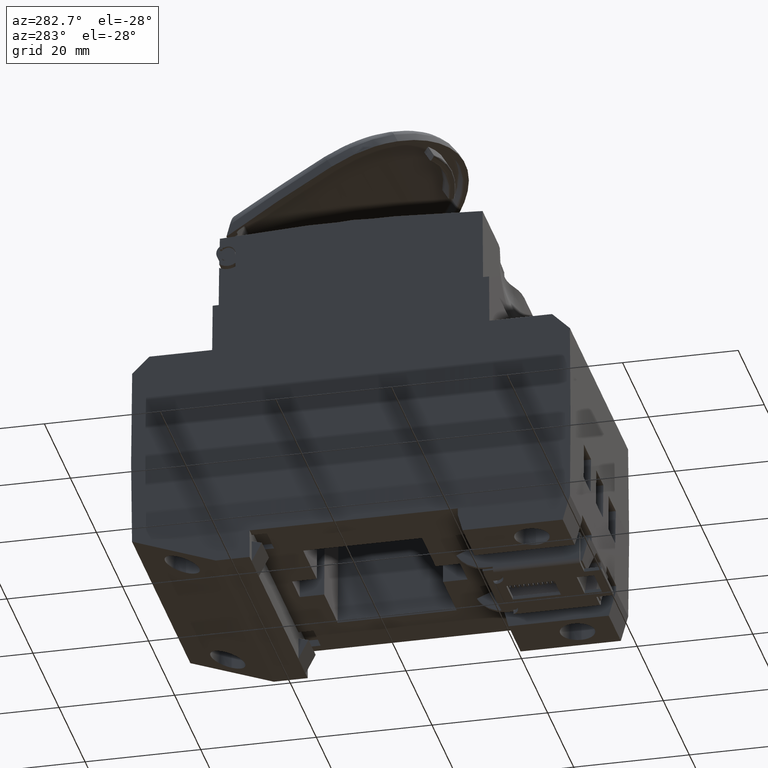
[diagram: clean part render]
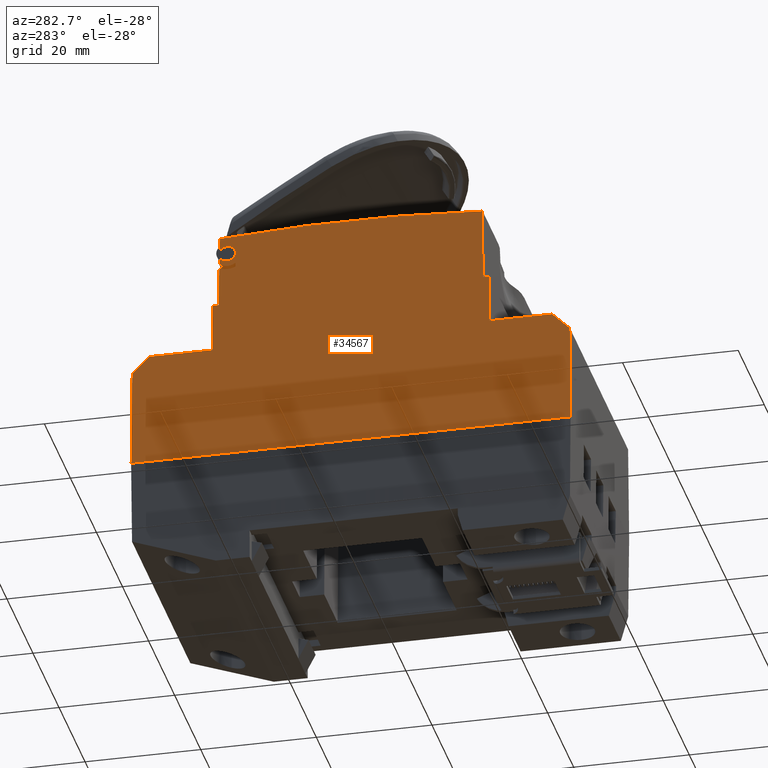
[diagram: same view with one face highlighted and labeled with its STEP entity id]
A machine part, auxiliary view. The second image highlights one B-rep face of the part: STEP entity #34567.
In plain terms, the highlighted planar face has unit normal (-1, -0, 0.0087).
Its self-contained STEP definition (entity closure, byte-faithful):
#369 = CARTESIAN_POINT ( 'NONE',  ( -22.17458333359016400, 21.97597551166610000, 11.86202160087930000 ) ) ;
#370 = CARTESIAN_POINT ( 'NONE',  ( -22.15316306614790800, 21.97597551166610000, 14.31654113249560500 ) ) ;
#374 = CARTESIAN_POINT ( 'NONE',  ( -22.15466507836840600, 22.26753146497856100, 14.14442757967132300 ) ) ;
#393 = CARTESIAN_POINT ( 'NONE',  ( -22.18676355948808200, 19.97804671303299900, 10.46630595696663900 ) ) ;
#556 = VECTOR ( 'NONE', #47746, 1000.000000000000100 ) ;
#918 = VECTOR ( 'NONE', #60528, 1000.000000000000100 ) ;
#933 = VECTOR ( 'NONE', #60536, 1000.000000000000000 ) ;
#1380 = CARTESIAN_POINT ( 'NONE',  ( -22.49780052446459400, 23.97500475979786600, -25.19999999999999200 ) ) ;
#1382 = CARTESIAN_POINT ( 'NONE',  ( -22.49801869615937400, -7.991668253266463600, -25.19999999999999200 ) ) ;
#1396 = CARTESIAN_POINT ( 'NONE',  ( -22.49801869615939900, 7.991668253265697100, -25.19999999999999200 ) ) ;
#1411 = CARTESIAN_POINT ( 'NONE',  ( -22.49780052446455900, -23.97500475979861900, -25.19999999999999200 ) ) ;
#2905 = AXIS2_PLACEMENT_3D ( 'NONE', #13147, #13106, #13131 ) ;
#4307 = CARTESIAN_POINT ( 'NONE',  ( -22.17565447138656500, 21.32804671303300000, 11.73928136668744500 ) ) ;
#4323 = CARTESIAN_POINT ( 'NONE',  ( -22.17565043428683700, 21.52125764029313600, 11.73974397249633100 ) ) ;
#4332 = CARTESIAN_POINT ( 'NONE',  ( -22.17461536598796500, 21.88240269932254700, 11.85835105165536300 ) ) ;
#4352 = CARTESIAN_POINT ( 'NONE',  ( -22.17530406582063700, 21.70604296905632000, 11.77943386748563100 ) ) ;
#7364 = CARTESIAN_POINT ( 'NONE',  ( -22.15584761742177000, 20.33059559037909000, 14.00892202582260100 ) ) ;
#7366 = CARTESIAN_POINT ( 'NONE',  ( -22.16485346944145400, 19.97800233832086300, 12.97695359962178000 ) ) ;
#7367 = CARTESIAN_POINT ( 'NONE',  ( -22.16787411623834500, 20.05574582416449300, 12.63082176064905900 ) ) ;
#7368 = CARTESIAN_POINT ( 'NONE',  ( -22.16898124393439300, 20.11141320759353900, 12.50395749243796800 ) ) ;
#7369 = CARTESIAN_POINT ( 'NONE',  ( -22.17232649514465900, 20.38510573159142000, 12.12062967191026500 ) ) ;
#7370 = CARTESIAN_POINT ( 'NONE',  ( -22.15794834969837300, 20.16109464474995100, 13.76820194996279800 ) ) ;
#7371 = CARTESIAN_POINT ( 'NONE',  ( -22.16865187409546000, 20.09340795923226300, 12.54169953767486200 ) ) ;
#7372 = CARTESIAN_POINT ( 'NONE',  ( -22.16919994494769200, 20.12383100279710400, 12.47889683854240100 ) ) ;
#7373 = CARTESIAN_POINT ( 'NONE',  ( -22.17124797044054300, 20.26667442405207000, 12.24421636188650300 ) ) ;
#7374 = CARTESIAN_POINT ( 'NONE',  ( -22.15252462940536700, 20.96547117423330100, 14.38969873701710300 ) ) ;
#7375 = CARTESIAN_POINT ( 'NONE',  ( -22.17372579713714500, 20.58332341325227000, 11.96028554546862000 ) ) ;
#7377 = CARTESIAN_POINT ( 'NONE',  ( -22.15423805896775600, 20.55111157472950400, 14.19335915637111600 ) ) ;
#7378 = CARTESIAN_POINT ( 'NONE',  ( -22.15703394413382900, 20.22657601810139000, 13.87298244927409900 ) ) ;
#7379 = CARTESIAN_POINT ( 'NONE',  ( -22.16191266072421600, 19.97813546245728800, 13.31393690081877600 ) ) ;
#7380 = CARTESIAN_POINT ( 'NONE',  ( -22.17018620285252000, 20.18381716974978000, 12.36588287654909900 ) ) ;
#7381 = CARTESIAN_POINT ( 'NONE',  ( -22.17306529935774200, 20.48345118574426800, 12.03597109442251800 ) ) ;
#7383 = CARTESIAN_POINT ( 'NONE',  ( -22.15215161141331600, 21.16819443267387200, 14.43244236519849200 ) ) ;
#7384 = CARTESIAN_POINT ( 'NONE',  ( -22.15766790795869000, 20.17993390569544900, 13.80033739035319600 ) ) ;
#7385 = CARTESIAN_POINT ( 'NONE',  ( -22.17316583643711800, 20.49818067730170100, 12.02445068620957600 ) ) ;
#7386 = CARTESIAN_POINT ( 'NONE',  ( -22.17428210760804700, 20.68628093841671900, 11.89653867955450800 ) ) ;
#7387 = CARTESIAN_POINT ( 'NONE',  ( -22.15314722485550900, 20.75890313710105400, 14.31835636480846800 ) ) ;
#7388 = CARTESIAN_POINT ( 'NONE',  ( -22.15232322744690300, 21.05853250276365400, 14.41277711557074800 ) ) ;
#7389 = CARTESIAN_POINT ( 'NONE',  ( -22.17513192437214500, 20.93043154531223500, 11.79915932369931900 ) ) ;
#7390 = CARTESIAN_POINT ( 'NONE',  ( -22.15243466136308500, 21.00414259037588100, 14.40000805353602900 ) ) ;
#7393 = CARTESIAN_POINT ( 'NONE',  ( -22.15209237218250100, 21.26370255282779100, 14.43923050869376300 ) ) ;
#7394 = CARTESIAN_POINT ( 'NONE',  ( -22.15374736064079300, 20.63568903108404500, 14.24958761527821600 ) ) ;
#7395 = CARTESIAN_POINT ( 'NONE',  ( -22.16628168759238400, 19.99782199846322700, 12.81329600961665500 ) ) ;
#7396 = CARTESIAN_POINT ( 'NONE',  ( -22.17499515587588000, 20.88189918663837100, 11.81483144106678500 ) ) ;
#7398 = CARTESIAN_POINT ( 'NONE',  ( -22.17509228933249000, 20.91578910960731000, 11.80370104939065000 ) ) ;
#7399 = CARTESIAN_POINT ( 'NONE',  ( -22.15822097619456700, 20.14348232565626500, 13.73696204777371400 ) ) ;
#7401 = CARTESIAN_POINT ( 'NONE',  ( -22.17282570645957700, 20.44976251307443600, 12.06342572120467000 ) ) ;
#7402 = CARTESIAN_POINT ( 'NONE',  ( -22.15408518586929200, 20.57617139856277400, 14.21087667836540700 ) ) ;
#7403 = CARTESIAN_POINT ( 'NONE',  ( -22.15434177233510500, 20.53450452172099000, 14.18147478160598700 ) ) ;
#7404 = CARTESIAN_POINT ( 'NONE',  ( -22.17327149332968300, 20.51396691926929700, 12.01234360551361600 ) ) ;
#7405 = CARTESIAN_POINT ( 'NONE',  ( -22.17517343063912300, 20.94620773323706000, 11.79440317659389200 ) ) ;
#7406 = CARTESIAN_POINT ( 'NONE',  ( -22.17549649690155200, 21.07289406650280100, 11.75738344968084300 ) ) ;
#7407 = CARTESIAN_POINT ( 'NONE',  ( -22.15813725373763500, 20.14879074096404200, 13.74655569110031900 ) ) ;
#7408 = CARTESIAN_POINT ( 'NONE',  ( -22.17565358052177500, 21.19889406650279500, 11.73938344968083800 ) ) ;
#7409 = CARTESIAN_POINT ( 'NONE',  ( -22.17565447138656500, 21.32804671303300000, 11.73928136668744500 ) ) ;
#7411 = CARTESIAN_POINT ( 'NONE',  ( -22.15253829205414200, 20.95984268274242600, 14.38813315253594500 ) ) ;
#7412 = CARTESIAN_POINT ( 'NONE',  ( -22.15209192835151000, 21.32804671303300000, 14.43928136668744200 ) ) ;
#7413 = CARTESIAN_POINT ( 'NONE',  ( -22.16005860652034400, 20.03107691106076200, 13.52639046930713500 ) ) ;
#7414 = CARTESIAN_POINT ( 'NONE',  ( -22.16932121824068200, 20.13100187653164100, 12.46500029560180200 ) ) ;
#7415 = CARTESIAN_POINT ( 'NONE',  ( -22.17323238435864100, 20.50806511366991100, 12.01682504971384400 ) ) ;
#7416 = CARTESIAN_POINT ( 'NONE',  ( -22.17478228217291300, 20.81522238207079000, 11.83922435133773700 ) ) ;
#7418 = CARTESIAN_POINT ( 'NONE',  ( -22.15276227647675000, 20.87167895535760200, 14.36246707989945800 ) ) ;
#7419 = CARTESIAN_POINT ( 'NONE',  ( -22.17515790471310700, 20.94021943200529600, 11.79618227149840600 ) ) ;
#7421 = CARTESIAN_POINT ( 'NONE',  ( -22.15497065327593200, 20.43815867655849800, 14.10941216350416900 ) ) ;
#7423 = CARTESIAN_POINT ( 'NONE',  ( -22.15248791001990700, 20.98092713918841000, 14.39390636183098200 ) ) ;
#7424 = CARTESIAN_POINT ( 'NONE',  ( -22.15438287382740500, 20.52803271759231400, 14.17676501708536000 ) ) ;
#11150 = CARTESIAN_POINT ( 'NONE',  ( -22.17461536598796500, 21.88240269932254700, 11.85835105165536300 ) ) ;
#11172 = CARTESIAN_POINT ( 'NONE',  ( -22.18619492158796500, 22.79776692894712300, 10.53146540635460600 ) ) ;
#11330 = CARTESIAN_POINT ( 'NONE',  ( -22.18961745985178900, 21.32804671303300000, 10.13928136668744000 ) ) ;
#11385 = CARTESIAN_POINT ( 'NONE',  ( -22.18438133917732800, 21.32804671303300000, 10.73928136668744500 ) ) ;
#11454 = CARTESIAN_POINT ( 'NONE',  ( -22.17565447138656500, 21.32804671303300000, 11.73928136668744500 ) ) ;
#11498 = CARTESIAN_POINT ( 'NONE',  ( -22.15209192835151000, 21.32804671303300000, 14.43928136668744200 ) ) ;
#11512 = CARTESIAN_POINT ( 'NONE',  ( -22.15313103375011400, 21.88240269932254700, 14.32021168171953100 ) ) ;
#11555 = CARTESIAN_POINT ( 'NONE',  ( -22.15322724721294300, 21.93373195731230000, 14.30918671088918600 ) ) ;
#11597 = CARTESIAN_POINT ( 'NONE',  ( -22.18065966523010200, 19.97804671303299900, 11.16574296052030700 ) ) ;
#11644 = CARTESIAN_POINT ( 'NONE',  ( -22.17469629226463100, 22.05032416732875000, 11.84907781885199900 ) ) ;
#11801 = CARTESIAN_POINT ( 'NONE',  ( -22.17308132136967200, 22.26753146497856100, 12.03413515370360000 ) ) ;
#13049 = VECTOR ( 'NONE', #60438, 1000.000000000000000 ) ;
#13106 = DIRECTION ( 'NONE',  ( -0.9999619230641713100, -1.340397334383358200E-015, 0.008726535498377320900 ) ) ;
#13131 = DIRECTION ( 'NONE',  ( 0.008726535498377319100, 0.0000000000000000000, 0.9999619230641712000 ) ) ;
#13133 = FACE_OUTER_BOUND ( 'NONE', #25834, .T. ) ;
#13134 = PLANE ( 'NONE',  #2905 ) ;
#13147 = CARTESIAN_POINT ( 'NONE',  ( -22.49020086734160600, 23.94831876901239200, -24.30416554882510700 ) ) ;
#17809 = EDGE_CURVE ( 'NONE', #32227, #42919, #47706, .T. ) ;
#17811 = EDGE_CURVE ( 'NONE', #32247, #42959, #42390, .T. ) ;
#17829 = EDGE_CURVE ( 'NONE', #32267, #32259, #40333, .T. ) ;
#25834 = EDGE_LOOP ( 'NONE', ( #35242, #35235, #35283, #35328, #35331, #35311, #35285, #35302, #35290, #35326, #35305, #35218, #35320, #35281, #35340, #35289, #35279, #35300, #35239, #35322, #35312, #35330, #35272, #35256, #35287, #35309, #35339, #35252, #35298, #35303, #35341, #35284, #35231, #35319, #35282, #35275, #35276 ) ) ;
#28586 = EDGE_CURVE ( 'NONE', #39792, #39804, #57286, .T. ) ;
#28623 = EDGE_CURVE ( 'NONE', #39713, #32664, #57646, .T. ) ;
#28625 = EDGE_CURVE ( 'NONE', #32703, #39790, #57715, .T. ) ;
#28650 = EDGE_CURVE ( 'NONE', #32693, #39769, #56555, .T. ) ;
#28681 = EDGE_CURVE ( 'NONE', #39866, #39757, #56853, .T. ) ;
#28727 = EDGE_CURVE ( 'NONE', #32227, #42891, #59398, .T. ) ;
#28753 = EDGE_CURVE ( 'NONE', #39599, #39790, #59813, .T. ) ;
#28761 = EDGE_CURVE ( 'NONE', #39559, #39597, #59843, .T. ) ;
#28763 = EDGE_CURVE ( 'NONE', #39583, #38896, #59844, .T. ) ;
#28764 = EDGE_CURVE ( 'NONE', #39597, #39600, #59851, .T. ) ;
#28770 = EDGE_CURVE ( 'NONE', #39866, #39565, #59874, .T. ) ;
#28771 = EDGE_CURVE ( 'NONE', #42820, #39757, #59907, .T. ) ;
#28804 = EDGE_CURVE ( 'NONE', #38893, #39592, #60023, .T. ) ;
#28808 = EDGE_CURVE ( 'NONE', #39592, #39559, #60096, .T. ) ;
#28813 = EDGE_CURVE ( 'NONE', #39600, #39804, #60105, .T. ) ;
#28815 = EDGE_CURVE ( 'NONE', #39606, #39599, #59750, .T. ) ;
#28816 = EDGE_CURVE ( 'NONE', #39792, #39606, #60141, .T. ) ;
#28837 = EDGE_CURVE ( 'NONE', #39543, #39583, #60295, .T. ) ;
#28855 = EDGE_CURVE ( 'NONE', #42940, #42911, #43413, .T. ) ;
#28865 = EDGE_CURVE ( 'NONE', #39769, #39713, #60449, .T. ) ;
#28875 = EDGE_CURVE ( 'NONE', #39608, #39543, #60478, .T. ) ;
#28876 = EDGE_CURVE ( 'NONE', #39565, #39608, #60530, .T. ) ;
#29322 = EDGE_CURVE ( 'NONE', #42942, #32259, #57929, .T. ) ;
#29326 = EDGE_CURVE ( 'NONE', #32247, #42817, #57940, .T. ) ;
#29330 = EDGE_CURVE ( 'NONE', #32267, #32703, #57966, .T. ) ;
#29349 = EDGE_CURVE ( 'NONE', #42890, #32664, #57969, .T. ) ;
#29389 = EDGE_CURVE ( 'NONE', #32693, #42962, #57975, .T. ) ;
#31209 = CARTESIAN_POINT ( 'NONE',  ( -22.13759905640093700, 22.68916877905699200, 16.10000000000004400 ) ) ;
#31211 = CARTESIAN_POINT ( 'NONE',  ( -22.32260865356502300, -23.97500475979863000, -5.099999999999997900 ) ) ;
#31213 = CARTESIAN_POINT ( 'NONE',  ( -22.32260865356509800, 23.97500475979811800, -5.099999999999997900 ) ) ;
#31217 = CARTESIAN_POINT ( 'NONE',  ( -22.49801869615943400, 37.95551707782797000, -25.19999999999999900 ) ) ;
#31227 = CARTESIAN_POINT ( 'NONE',  ( -22.49801869615933800, -38.04552050488263100, -25.19999999999999900 ) ) ;
#31235 = CARTESIAN_POINT ( 'NONE',  ( -22.32260865356502000, -34.81760846317315100, -5.099999999999988100 ) ) ;
#31251 = CARTESIAN_POINT ( 'NONE',  ( -22.32260865356510100, 34.81760846317313700, -5.099999999999997000 ) ) ;
#31297 = CARTESIAN_POINT ( 'NONE',  ( -22.34924642061916300, -37.89674822934252100, -8.152385769192457900 ) ) ;
#31298 = CARTESIAN_POINT ( 'NONE',  ( -22.34846100251809600, 37.80595938418668600, -8.062385769192538000 ) ) ;
#31299 = CARTESIAN_POINT ( 'NONE',  ( -22.13763885196516100, -22.74921085932517800, 16.09543988000757500 ) ) ;
#31422 = CARTESIAN_POINT ( 'NONE',  ( -22.18031530411000000, 22.79188731146922800, 11.20520283643092400 ) ) ;
#31460 = CARTESIAN_POINT ( 'NONE',  ( -22.15558267546781600, 22.70715239812384600, 14.03928136668744000 ) ) ;
#31465 = CARTESIAN_POINT ( 'NONE',  ( -22.24843027734354500, -23.90082638357716900, 3.400000000000000400 ) ) ;
#31470 = CARTESIAN_POINT ( 'NONE',  ( -22.24843027734355500, -22.86000228470326300, 3.400000000000003500 ) ) ;
#31487 = CARTESIAN_POINT ( 'NONE',  ( -22.17216372427025600, 22.78373573162945900, 12.13928136668745900 ) ) ;
#31492 = CARTESIAN_POINT ( 'NONE',  ( -22.24843027734361600, 22.86000228470280900, 3.399999999999999000 ) ) ;
#32020 = CARTESIAN_POINT ( 'NONE',  ( -22.49780052446459400, 23.97500475979786600, -25.19999999999999200 ) ) ;
#32080 = CARTESIAN_POINT ( 'NONE',  ( -22.49780052446455900, -23.97500475979861900, -25.19999999999999200 ) ) ;
#32227 = VERTEX_POINT ( 'NONE', #393 ) ;
#32247 = VERTEX_POINT ( 'NONE', #369 ) ;
#32259 = VERTEX_POINT ( 'NONE', #370 ) ;
#32267 = VERTEX_POINT ( 'NONE', #374 ) ;
#32664 = VERTEX_POINT ( 'NONE', #63594 ) ;
#32693 = VERTEX_POINT ( 'NONE', #63627 ) ;
#32703 = VERTEX_POINT ( 'NONE', #63574 ) ;
#33717 = EDGE_CURVE ( 'NONE', #38896, #38893, #58009, .T. ) ;
#34037 = EDGE_CURVE ( 'NONE', #42865, #42817, #58068, .T. ) ;
#34096 = EDGE_CURVE ( 'NONE', #42911, #42865, #58151, .T. ) ;
#34567 = ADVANCED_FACE ( 'NONE', ( #13133 ), #13134, .T. ) ;
#35218 = ORIENTED_EDGE ( 'NONE', *, *, #28625, .F. ) ;
#35231 = ORIENTED_EDGE ( 'NONE', *, *, #28681, .F. ) ;
#35235 = ORIENTED_EDGE ( 'NONE', *, *, #33717, .T. ) ;
#35239 = ORIENTED_EDGE ( 'NONE', *, *, #34037, .T. ) ;
#35242 = ORIENTED_EDGE ( 'NONE', *, *, #28763, .T. ) ;
#35252 = ORIENTED_EDGE ( 'NONE', *, *, #40209, .F. ) ;
#35256 = ORIENTED_EDGE ( 'NONE', *, *, #28650, .T. ) ;
#35272 = ORIENTED_EDGE ( 'NONE', *, *, #29389, .F. ) ;
#35275 = ORIENTED_EDGE ( 'NONE', *, *, #28875, .T. ) ;
#35276 = ORIENTED_EDGE ( 'NONE', *, *, #28837, .T. ) ;
#35279 = ORIENTED_EDGE ( 'NONE', *, *, #28855, .T. ) ;
#35281 = ORIENTED_EDGE ( 'NONE', *, *, #17829, .T. ) ;
#35282 = ORIENTED_EDGE ( 'NONE', *, *, #28876, .T. ) ;
#35283 = ORIENTED_EDGE ( 'NONE', *, *, #28804, .T. ) ;
#35284 = ORIENTED_EDGE ( 'NONE', *, *, #28771, .T. ) ;
#35285 = ORIENTED_EDGE ( 'NONE', *, *, #28813, .T. ) ;
#35287 = ORIENTED_EDGE ( 'NONE', *, *, #28865, .T. ) ;
#35289 = ORIENTED_EDGE ( 'NONE', *, *, #40189, .F. ) ;
#35290 = ORIENTED_EDGE ( 'NONE', *, *, #28816, .T. ) ;
#35298 = ORIENTED_EDGE ( 'NONE', *, *, #17809, .F. ) ;
#35300 = ORIENTED_EDGE ( 'NONE', *, *, #34096, .T. ) ;
#35302 = ORIENTED_EDGE ( 'NONE', *, *, #28586, .F. ) ;
#35303 = ORIENTED_EDGE ( 'NONE', *, *, #28727, .T. ) ;
#35305 = ORIENTED_EDGE ( 'NONE', *, *, #28753, .T. ) ;
#35309 = ORIENTED_EDGE ( 'NONE', *, *, #28623, .T. ) ;
#35311 = ORIENTED_EDGE ( 'NONE', *, *, #28764, .T. ) ;
#35312 = ORIENTED_EDGE ( 'NONE', *, *, #17811, .T. ) ;
#35319 = ORIENTED_EDGE ( 'NONE', *, *, #28770, .T. ) ;
#35320 = ORIENTED_EDGE ( 'NONE', *, *, #29330, .F. ) ;
#35322 = ORIENTED_EDGE ( 'NONE', *, *, #29326, .F. ) ;
#35326 = ORIENTED_EDGE ( 'NONE', *, *, #28815, .T. ) ;
#35328 = ORIENTED_EDGE ( 'NONE', *, *, #28808, .T. ) ;
#35330 = ORIENTED_EDGE ( 'NONE', *, *, #40359, .T. ) ;
#35331 = ORIENTED_EDGE ( 'NONE', *, *, #28761, .T. ) ;
#35339 = ORIENTED_EDGE ( 'NONE', *, *, #29349, .F. ) ;
#35340 = ORIENTED_EDGE ( 'NONE', *, *, #29322, .F. ) ;
#35341 = ORIENTED_EDGE ( 'NONE', *, *, #40091, .T. ) ;
#38893 = VERTEX_POINT ( 'NONE', #32080 ) ;
#38896 = VERTEX_POINT ( 'NONE', #32020 ) ;
#39543 = VERTEX_POINT ( 'NONE', #31298 ) ;
#39559 = VERTEX_POINT ( 'NONE', #31297 ) ;
#39565 = VERTEX_POINT ( 'NONE', #31213 ) ;
#39583 = VERTEX_POINT ( 'NONE', #31217 ) ;
#39592 = VERTEX_POINT ( 'NONE', #31227 ) ;
#39597 = VERTEX_POINT ( 'NONE', #31235 ) ;
#39599 = VERTEX_POINT ( 'NONE', #31209 ) ;
#39600 = VERTEX_POINT ( 'NONE', #31211 ) ;
#39606 = VERTEX_POINT ( 'NONE', #31299 ) ;
#39608 = VERTEX_POINT ( 'NONE', #31251 ) ;
#39713 = VERTEX_POINT ( 'NONE', #31422 ) ;
#39757 = VERTEX_POINT ( 'NONE', #31492 ) ;
#39769 = VERTEX_POINT ( 'NONE', #31487 ) ;
#39790 = VERTEX_POINT ( 'NONE', #31460 ) ;
#39792 = VERTEX_POINT ( 'NONE', #31470 ) ;
#39804 = VERTEX_POINT ( 'NONE', #31465 ) ;
#39866 = VERTEX_POINT ( 'NONE', #40715 ) ;
#40091 = EDGE_CURVE ( 'NONE', #42891, #42820, #58625, .T. ) ;
#40189 = EDGE_CURVE ( 'NONE', #42940, #42942, #58721, .T. ) ;
#40209 = EDGE_CURVE ( 'NONE', #42919, #42890, #58717, .T. ) ;
#40333 = B_SPLINE_CURVE_WITH_KNOTS ( 'NONE', 3,
 ( #47949, #47894, #47924, #47916, #47920, #47951, #47954, #47952, #47965, #47908, #47934 ),
 .UNSPECIFIED., .F., .F.,
 ( 4, 2, 1, 2, 2, 4 ),
 ( 0.0000000000000000000, 0.4999999999999801300, 0.6249999999999806800, 0.6874999999999933400, 0.7500000000000058800, 1.000000000000000000 ),
 .UNSPECIFIED. ) ;
#40359 = EDGE_CURVE ( 'NONE', #42959, #42962, #57792, .T. ) ;
#40715 = CARTESIAN_POINT ( 'NONE',  ( -22.24843027734361600, 23.90082638357667100, 3.400000000000000400 ) ) ;
#42390 = B_SPLINE_CURVE_WITH_KNOTS ( 'NONE', 3,
 ( #47783, #47834, #47865, #47775 ),
 .UNSPECIFIED., .F., .F.,
 ( 4, 4 ),
 ( 0.0000000000000000000, 1.000000000000000000 ),
 .UNSPECIFIED. ) ;
#42817 = VERTEX_POINT ( 'NONE', #11150 ) ;
#42820 = VERTEX_POINT ( 'NONE', #11172 ) ;
#42865 = VERTEX_POINT ( 'NONE', #11454 ) ;
#42890 = VERTEX_POINT ( 'NONE', #11385 ) ;
#42891 = VERTEX_POINT ( 'NONE', #11330 ) ;
#42911 = VERTEX_POINT ( 'NONE', #11498 ) ;
#42919 = VERTEX_POINT ( 'NONE', #11597 ) ;
#42940 = VERTEX_POINT ( 'NONE', #11512 ) ;
#42942 = VERTEX_POINT ( 'NONE', #11555 ) ;
#42959 = VERTEX_POINT ( 'NONE', #11644 ) ;
#42962 = VERTEX_POINT ( 'NONE', #11801 ) ;
#43413 = B_SPLINE_CURVE_WITH_KNOTS ( 'NONE', 3,
 ( #60356, #60358, #60381, #60384 ),
 .UNSPECIFIED., .F., .F.,
 ( 4, 4 ),
 ( 0.0000000000000000000, 1.000000000000000000 ),
 .UNSPECIFIED. ) ;
#43964 = CARTESIAN_POINT ( 'NONE',  ( -22.18961745985178900, 21.32804671303300000, 10.13928136668744000 ) ) ;
#43999 = CARTESIAN_POINT ( 'NONE',  ( -22.18932571786837100, 21.83996804751906100, 10.17271168675387300 ) ) ;
#44000 = CARTESIAN_POINT ( 'NONE',  ( -22.18816850854091200, 22.33727160229937800, 10.30531474150342500 ) ) ;
#44004 = CARTESIAN_POINT ( 'NONE',  ( -22.18961663904632100, 21.58609746285215200, 10.13937542167811200 ) ) ;
#44019 = CARTESIAN_POINT ( 'NONE',  ( -22.18731777800202900, 22.57365397031200900, 10.40279880557874600 ) ) ;
#44026 = CARTESIAN_POINT ( 'NONE',  ( -22.18619492158796500, 22.79776692894712300, 10.53146540635460600 ) ) ;
#45892 = CARTESIAN_POINT ( 'NONE',  ( -22.15322724721294300, 21.93373195731230000, 14.30918671088918600 ) ) ;
#45930 = CARTESIAN_POINT ( 'NONE',  ( -22.15313103375011400, 21.88240269932254700, 14.32021168171953100 ) ) ;
#45931 = CARTESIAN_POINT ( 'NONE',  ( -22.15316310490438300, 21.89847885253912500, 14.31297170098034700 ) ) ;
#45933 = CARTESIAN_POINT ( 'NONE',  ( -22.15319517605866300, 21.91610073434431500, 14.30918671088918100 ) ) ;
#45974 = CARTESIAN_POINT ( 'NONE',  ( -22.18314078119491500, 20.38315256474382800, 10.88142688029222600 ) ) ;
#45976 = CARTESIAN_POINT ( 'NONE',  ( -22.18065966523010200, 19.97804671303299900, 11.16574296052030700 ) ) ;
#45978 = CARTESIAN_POINT ( 'NONE',  ( -22.18438133917732800, 21.32804671303300000, 10.73928136668744500 ) ) ;
#45979 = CARTESIAN_POINT ( 'NONE',  ( -22.18438133917732100, 20.86423911988875800, 10.73928136668744300 ) ) ;
#46723 = CARTESIAN_POINT ( 'NONE',  ( -22.17453695820388400, 22.15242086018264400, 11.86733569379264500 ) ) ;
#46725 = CARTESIAN_POINT ( 'NONE',  ( -22.17393865091427000, 22.23357853428488100, 11.93589491847237800 ) ) ;
#46729 = CARTESIAN_POINT ( 'NONE',  ( -22.17308132136967200, 22.26753146497856100, 12.03413515370360000 ) ) ;
#46731 = CARTESIAN_POINT ( 'NONE',  ( -22.17469629226463100, 22.05032416732875000, 11.84907781885199900 ) ) ;
#46759 = CARTESIAN_POINT ( 'NONE',  ( -22.17469279500911500, 22.10445438696019600, 11.84947856464186500 ) ) ;
#46760 = CARTESIAN_POINT ( 'NONE',  ( -22.17355315651780900, 22.25842245686648000, 11.98006820099607900 ) ) ;
#47706 = LINE ( 'NONE', #47744, #556 ) ;
#47744 = CARTESIAN_POINT ( 'NONE',  ( -22.18676355948808200, 19.97804671303299900, 10.46630595696663900 ) ) ;
#47746 = DIRECTION ( 'NONE',  ( 0.008726535498378559400, 0.0000000000000000000, 0.9999619230641712000 ) ) ;
#47775 = CARTESIAN_POINT ( 'NONE',  ( -22.17469629226463100, 22.05032416732875000, 11.84907781885199900 ) ) ;
#47783 = CARTESIAN_POINT ( 'NONE',  ( -22.17458333359016400, 21.97597551166610000, 11.86202160087930000 ) ) ;
#47834 = CARTESIAN_POINT ( 'NONE',  ( -22.17465744012545800, 22.00003116884056100, 11.85352983303515900 ) ) ;
#47865 = CARTESIAN_POINT ( 'NONE',  ( -22.17469509301694700, 22.02481405406144400, 11.84921523902605500 ) ) ;
#47894 = CARTESIAN_POINT ( 'NONE',  ( -22.15407229652203500, 22.25599062588622700, 14.21235365126906600 ) ) ;
#47908 = CARTESIAN_POINT ( 'NONE',  ( -22.15307092172668400, 22.00621388203335000, 14.32709983734122300 ) ) ;
#47916 = CARTESIAN_POINT ( 'NONE',  ( -22.15324133051978000, 22.14771116658781800, 14.30757292377048800 ) ) ;
#47920 = CARTESIAN_POINT ( 'NONE',  ( -22.15315210632650500, 22.12487248556260500, 14.31779700363696200 ) ) ;
#47924 = CARTESIAN_POINT ( 'NONE',  ( -22.15361815442214800, 22.21997015863754000, 14.26439318146109200 ) ) ;
#47934 = CARTESIAN_POINT ( 'NONE',  ( -22.15316306614790800, 21.97597551166610000, 14.31654113249560500 ) ) ;
#47949 = CARTESIAN_POINT ( 'NONE',  ( -22.15466507836840600, 22.26753146497856100, 14.14442757967132300 ) ) ;
#47951 = CARTESIAN_POINT ( 'NONE',  ( -22.15309861659937600, 22.10029232942191200, 14.32392631926389900 ) ) ;
#47952 = CARTESIAN_POINT ( 'NONE',  ( -22.15306013059034700, 22.07363618059540800, 14.32833637908658300 ) ) ;
#47954 = CARTESIAN_POINT ( 'NONE',  ( -22.15307089777376600, 22.08351856419134800, 14.32710258207307400 ) ) ;
#47965 = CARTESIAN_POINT ( 'NONE',  ( -22.15303492982301100, 22.03627681389653100, 14.33122410099905000 ) ) ;
#49334 = VECTOR ( 'NONE', #60158, 1000.000000000000100 ) ;
#49355 = VECTOR ( 'NONE', #60328, 1000.000000000000100 ) ;
#49376 = VECTOR ( 'NONE', #59822, 1000.000000000000000 ) ;
#49382 = VECTOR ( 'NONE', #60114, 1000.000000000000000 ) ;
#49386 = VECTOR ( 'NONE', #59881, 1000.000000000000100 ) ;
#49390 = VECTOR ( 'NONE', #60128, 1000.000000000000100 ) ;
#49391 = VECTOR ( 'NONE', #59883, 1000.000000000000000 ) ;
#49403 = VECTOR ( 'NONE', #60094, 1000.000000000000000 ) ;
#49405 = VECTOR ( 'NONE', #59852, 1000.000000000000000 ) ;
#49773 = VECTOR ( 'NONE', #57684, 1000.000000000000000 ) ;
#49778 = VECTOR ( 'NONE', #56606, 1000.000000000000000 ) ;
#49816 = VECTOR ( 'NONE', #57707, 1000.000000000000000 ) ;
#49829 = VECTOR ( 'NONE', #57316, 1000.000000000000000 ) ;
#49861 = VECTOR ( 'NONE', #59829, 1000.000000000000100 ) ;
#49864 = VECTOR ( 'NONE', #56855, 1000.000000000000000 ) ;
#49900 = VECTOR ( 'NONE', #59860, 1000.000000000000000 ) ;
#56555 = LINE ( 'NONE', #56646, #49778 ) ;
#56606 = DIRECTION ( 'NONE',  ( 0.0000000000000000000, 1.000000000000000000, 0.0000000000000000000 ) ) ;
#56646 = CARTESIAN_POINT ( 'NONE',  ( -22.17216372427025600, 22.28721301769554900, 12.13928136668745900 ) ) ;
#56846 = CARTESIAN_POINT ( 'NONE',  ( -22.24843027734360500, 47.00425833139870200, 3.399999999999999900 ) ) ;
#56853 = LINE ( 'NONE', #56846, #49864 ) ;
#56855 = DIRECTION ( 'NONE',  ( -0.0000000000000000000, -1.000000000000000000, -0.0000000000000000000 ) ) ;
#57286 = LINE ( 'NONE', #57304, #49829 ) ;
#57304 = CARTESIAN_POINT ( 'NONE',  ( -22.24843027734354800, -47.00425833140040100, 3.399999999999999900 ) ) ;
#57310 = CARTESIAN_POINT ( 'NONE',  ( -22.18676355948808200, 19.97804671303299900, 10.46630595696663900 ) ) ;
#57316 = DIRECTION ( 'NONE',  ( -0.0000000000000000000, -1.000000000000000000, -0.0000000000000000000 ) ) ;
#57343 = CARTESIAN_POINT ( 'NONE',  ( -22.18863906211487700, 20.39598327828997500, 10.25139464264970500 ) ) ;
#57445 = CARTESIAN_POINT ( 'NONE',  ( -22.18961595685038900, 20.85735137867259700, 10.13945359358916000 ) ) ;
#57485 = CARTESIAN_POINT ( 'NONE',  ( -22.18961745985178900, 21.32804671303300000, 10.13928136668744000 ) ) ;
#57646 = LINE ( 'NONE', #57713, #49773 ) ;
#57673 = CARTESIAN_POINT ( 'NONE',  ( -22.15558267546780500, 22.28721301769554900, 14.03928136668744000 ) ) ;
#57684 = DIRECTION ( 'NONE',  ( 0.0000000000000000000, -0.9999619230641713100, -0.008726535498373959000 ) ) ;
#57707 = DIRECTION ( 'NONE',  ( 0.0000000000000000000, 1.000000000000000000, 0.0000000000000000000 ) ) ;
#57713 = CARTESIAN_POINT ( 'NONE',  ( -22.18031530410999300, 22.79188731146932800, 11.20520283643090800 ) ) ;
#57715 = LINE ( 'NONE', #57673, #49816 ) ;
#57792 = B_SPLINE_CURVE_WITH_KNOTS ( 'NONE', 3,
 ( #46731, #46759, #46723, #46725, #46760, #46729 ),
 .UNSPECIFIED., .F., .F.,
 ( 4, 2, 4 ),
 ( 0.0000000000000000000, 0.5000000000000000000, 1.000000000000000000 ),
 .UNSPECIFIED. ) ;
#57929 = B_SPLINE_CURVE_WITH_KNOTS ( 'NONE', 3,
 ( #62022, #62026, #62036, #62040 ),
 .UNSPECIFIED., .F., .F.,
 ( 4, 4 ),
 ( 0.0000000000000000000, 1.000000000000000000 ),
 .UNSPECIFIED. ) ;
#57940 = B_SPLINE_CURVE_WITH_KNOTS ( 'NONE', 3,
 ( #62080, #62109, #62065, #62081 ),
 .UNSPECIFIED., .F., .F.,
 ( 4, 4 ),
 ( 0.0000000000000000000, 1.000000000000000000 ),
 .UNSPECIFIED. ) ;
#57966 = B_SPLINE_CURVE_WITH_KNOTS ( 'NONE', 3,
 ( #62089, #62067, #62076, #62085, #62105, #62093 ),
 .UNSPECIFIED., .F., .F.,
 ( 4, 2, 4 ),
 ( 0.0000000000000000000, 0.5000000000000000000, 1.000000000000000000 ),
 .UNSPECIFIED. ) ;
#57969 = B_SPLINE_CURVE_WITH_KNOTS ( 'NONE', 3,
 ( #61057, #61049, #61076, #61037, #61028, #61047 ),
 .UNSPECIFIED., .F., .F.,
 ( 4, 2, 4 ),
 ( 0.0000000000000000000, 0.5000000000000000000, 1.000000000000000000 ),
 .UNSPECIFIED. ) ;
#57975 = B_SPLINE_CURVE_WITH_KNOTS ( 'NONE', 3,
 ( #64139, #64124, #64163, #64165, #64128, #64168 ),
 .UNSPECIFIED., .F., .F.,
 ( 4, 2, 4 ),
 ( 0.0000000000000000000, 0.5000000000000000000, 1.000000000000000000 ),
 .UNSPECIFIED. ) ;
#58009 = B_SPLINE_CURVE_WITH_KNOTS ( 'NONE', 3,
 ( #1380, #1396, #1382, #1411 ),
 .UNSPECIFIED., .F., .F.,
 ( 4, 4 ),
 ( 0.0000000000000000000, 1.000000000000000000 ),
 .UNSPECIFIED. ) ;
#58068 = B_SPLINE_CURVE_WITH_KNOTS ( 'NONE', 3,
 ( #4307, #4323, #4352, #4332 ),
 .UNSPECIFIED., .F., .F.,
 ( 4, 4 ),
 ( 0.0000000000000000000, 1.000000000000000000 ),
 .UNSPECIFIED. ) ;
#58151 = B_SPLINE_CURVE_WITH_KNOTS ( 'NONE', 3,
 ( #7412, #7393, #7383, #7388, #7390, #7423, #7374, #7411, #7418, #7387, #7394, #7402, #7377, #7403, #7424, #7421, #7364, #7378, #7384, #7370, #7407, #7399, #7413, #7379, #7366, #7395, #7367, #7371, #7368, #7372, #7414, #7380, #7373, #7369, #7401, #7381, #7385, #7415, #7404, #7375, #7386, #7416, #7396, #7398, #7389, #7419, #7405, #7406, #7408, #7409 ),
 .UNSPECIFIED., .F., .F.,
 ( 4, 1, 1, 1, 2, 2, 1, 1, 1, 2, 2, 1, 1, 1, 2, 2, 2, 1, 1, 1, 2, 2, 1, 1, 1, 1, 2, 2, 1, 1, 1, 1, 2, 2, 4 ),
 ( 0.0000000000000000000, 0.06249999999999478200, 0.09374999999999217300, 0.1093749999999910500, 0.1171874999999886300, 0.1249999999999862200, 0.1874999999999709400, 0.2187499999999648100, 0.2343749999999613900, 0.2421874999999608100, 0.2499999999999602000, 0.3124999999999640800, 0.3437499999999660300, 0.3593749999999676400, 0.3671874999999689700, 0.3749999999999703000, 0.4999999999999886800, 0.5624999999999978900, 0.5937500000000024400, 0.6093750000000040000, 0.6171875000000047700, 0.6250000000000055500, 0.6875000000000154300, 0.7187500000000203200, 0.7343750000000232000, 0.7421875000000249800, 0.7460937500000258700, 0.7500000000000267600, 0.8125000000000394100, 0.8437500000000471800, 0.8593750000000526200, 0.8671875000000540700, 0.8710937500000549600, 0.8750000000000558400, 1.000000000000000000 ),
 .UNSPECIFIED. ) ;
#58625 = B_SPLINE_CURVE_WITH_KNOTS ( 'NONE', 3,
 ( #43964, #44004, #43999, #44000, #44019, #44026 ),
 .UNSPECIFIED., .F., .F.,
 ( 4, 2, 4 ),
 ( 0.0000000000000000000, 0.5000000000000000000, 1.000000000000000000 ),
 .UNSPECIFIED. ) ;
#58717 = B_SPLINE_CURVE_WITH_KNOTS ( 'NONE', 3,
 ( #45976, #45974, #45979, #45978 ),
 .UNSPECIFIED., .F., .F.,
 ( 4, 4 ),
 ( 0.0000000000000000000, 1.000000000000000000 ),
 .UNSPECIFIED. ) ;
#58721 = B_SPLINE_CURVE_WITH_KNOTS ( 'NONE', 3,
 ( #45930, #45931, #45933, #45892 ),
 .UNSPECIFIED., .F., .F.,
 ( 4, 4 ),
 ( 0.0000000000000000000, 1.000000000000000000 ),
 .UNSPECIFIED. ) ;
#59398 = B_SPLINE_CURVE_WITH_KNOTS ( 'NONE', 3,
 ( #57310, #57343, #57445, #57485 ),
 .UNSPECIFIED., .F., .F.,
 ( 4, 4 ),
 ( 0.0000000000000000000, 1.000000000000000000 ),
 .UNSPECIFIED. ) ;
#59750 = B_SPLINE_CURVE_WITH_KNOTS ( 'NONE', 3,
 ( #60135, #60165, #60167, #60168, #60151, #60136 ),
 .UNSPECIFIED., .F., .F.,
 ( 4, 2, 4 ),
 ( 0.0000000000000000000, 0.5000000000000000000, 1.000000000000000000 ),
 .UNSPECIFIED. ) ;
#59813 = LINE ( 'NONE', #59831, #49861 ) ;
#59817 = CARTESIAN_POINT ( 'NONE',  ( -22.32260865356509800, 23.94831876901239200, -5.099999999999997000 ) ) ;
#59822 = DIRECTION ( 'NONE',  ( 1.340346296160071700E-015, -1.000000000000000000, -1.169702492042670700E-017 ) ) ;
#59827 = CARTESIAN_POINT ( 'NONE',  ( -22.34924642061916300, -37.89674822934252100, -8.152385769192454400 ) ) ;
#59829 = DIRECTION ( 'NONE',  ( -0.008726203243946633800, 0.008726203243931484500, -0.9999238504775706000 ) ) ;
#59831 = CARTESIAN_POINT ( 'NONE',  ( -22.13759905640094400, 22.68916877905698500, 16.10000000000000100 ) ) ;
#59835 = CARTESIAN_POINT ( 'NONE',  ( -22.49801869615942000, 23.94831876901239200, -25.19999999999999900 ) ) ;
#59843 = LINE ( 'NONE', #59827, #49900 ) ;
#59844 = LINE ( 'NONE', #59835, #49376 ) ;
#59851 = LINE ( 'NONE', #59817, #49405 ) ;
#59852 = DIRECTION ( 'NONE',  ( -1.340346296160071700E-015, 1.000000000000000000, 1.169702492042670700E-017 ) ) ;
#59860 = DIRECTION ( 'NONE',  ( 0.006143727471108060400, 0.7101719723858042100, 0.7040014376763852300 ) ) ;
#59874 = LINE ( 'NONE', #59898, #49386 ) ;
#59881 = DIRECTION ( 'NONE',  ( -0.008726203243947220100, 0.008726203243943547700, -0.9999238504775704900 ) ) ;
#59883 = DIRECTION ( 'NONE',  ( -0.008726203243947707600, 0.008726203243952571800, -0.9999238504775703800 ) ) ;
#59885 = CARTESIAN_POINT ( 'NONE',  ( -22.18619492158797300, 22.79776692894711900, 10.53146540635460600 ) ) ;
#59898 = CARTESIAN_POINT ( 'NONE',  ( -22.24843027734362300, 23.90082638357641500, 3.400000000000003900 ) ) ;
#59907 = LINE ( 'NONE', #59885, #49391 ) ;
#60023 = LINE ( 'NONE', #60111, #49382 ) ;
#60088 = CARTESIAN_POINT ( 'NONE',  ( -22.49801869615933800, -38.04552050488263100, -25.19999999999999900 ) ) ;
#60094 = DIRECTION ( 'NONE',  ( 0.008726203243947553200, 0.008726203243943891200, 0.9999238504775704900 ) ) ;
#60096 = LINE ( 'NONE', #60088, #49403 ) ;
#60105 = LINE ( 'NONE', #60107, #49390 ) ;
#60107 = CARTESIAN_POINT ( 'NONE',  ( -22.32260865356503400, -23.97500475979863000, -5.099999999999997900 ) ) ;
#60111 = CARTESIAN_POINT ( 'NONE',  ( -22.49801869615942000, 23.94831876901239200, -25.19999999999999900 ) ) ;
#60114 = DIRECTION ( 'NONE',  ( 1.340346296160071700E-015, -1.000000000000000000, -1.169702492042670700E-017 ) ) ;
#60128 = DIRECTION ( 'NONE',  ( 0.008726203243946814200, 0.008726203243945180100, 0.9999238504775704900 ) ) ;
#60135 = CARTESIAN_POINT ( 'NONE',  ( -22.13763885196516100, -22.74921085932517800, 16.09543988000757500 ) ) ;
#60136 = CARTESIAN_POINT ( 'NONE',  ( -22.13759905640093700, 22.68916877905699200, 16.10000000000004400 ) ) ;
#60141 = LINE ( 'NONE', #60175, #49334 ) ;
#60151 = CARTESIAN_POINT ( 'NONE',  ( -22.13259339093129400, 15.12638775137447500, 16.67359244916490000 ) ) ;
#60158 = DIRECTION ( 'NONE',  ( 0.008726203243947818600, 0.008726203243943995300, 0.9999238504775704900 ) ) ;
#60165 = CARTESIAN_POINT ( 'NONE',  ( -22.13262018228582700, -15.18691107332792500, 16.67052246400802300 ) ) ;
#60167 = CARTESIAN_POINT ( 'NONE',  ( -22.13010746549658900, -7.613510657471687500, 16.95845128904562300 ) ) ;
#60168 = CARTESIAN_POINT ( 'NONE',  ( -22.13009393965649000, 7.553295658532232600, 16.96000119680700600 ) ) ;
#60175 = CARTESIAN_POINT ( 'NONE',  ( -22.24843027734356200, -22.86000228470351600, 3.400000000000003500 ) ) ;
#60295 = LINE ( 'NONE', #60326, #49355 ) ;
#60326 = CARTESIAN_POINT ( 'NONE',  ( -22.34846100251809600, 37.80595938418668600, -8.062385769192538000 ) ) ;
#60328 = DIRECTION ( 'NONE',  ( -0.008726203243947558400, 0.008726203243944723900, -0.9999238504775704900 ) ) ;
#60356 = CARTESIAN_POINT ( 'NONE',  ( -22.15313103375011400, 21.88240269932254700, 14.32021168171953100 ) ) ;
#60358 = CARTESIAN_POINT ( 'NONE',  ( -22.15244233391744500, 21.70604296905630200, 14.39912886588926000 ) ) ;
#60381 = CARTESIAN_POINT ( 'NONE',  ( -22.15209596545124500, 21.52125764029311800, 14.43881876087856000 ) ) ;
#60384 = CARTESIAN_POINT ( 'NONE',  ( -22.15209192835151000, 21.32804671303300000, 14.43928136668744200 ) ) ;
#60407 = CARTESIAN_POINT ( 'NONE',  ( -22.17216372427027000, 22.78373573162946300, 12.13928136668746700 ) ) ;
#60438 = DIRECTION ( 'NONE',  ( -0.008726203243945738700, 0.008726203243945738700, -0.9999238504775704900 ) ) ;
#60449 = LINE ( 'NONE', #60407, #13049 ) ;
#60478 = LINE ( 'NONE', #60495, #918 ) ;
#60495 = CARTESIAN_POINT ( 'NONE',  ( -22.32260865356511200, 34.81760846317314400, -5.099999999999997000 ) ) ;
#60515 = CARTESIAN_POINT ( 'NONE',  ( -22.32260865356509800, 23.94831876901239200, -5.099999999999997000 ) ) ;
#60528 = DIRECTION ( 'NONE',  ( -0.006143727471109717100, 0.7101719723858002100, -0.7040014376763893400 ) ) ;
#60530 = LINE ( 'NONE', #60515, #933 ) ;
#60536 = DIRECTION ( 'NONE',  ( -1.340346296160071700E-015, 1.000000000000000000, 1.169702492042670700E-017 ) ) ;
#61028 = CARTESIAN_POINT ( 'NONE',  ( -22.18167369534530000, 22.52362459127840900, 11.04954233698565200 ) ) ;
#61037 = CARTESIAN_POINT ( 'NONE',  ( -22.18268906178229800, 22.29326021111644400, 10.93202805257863700 ) ) ;
#61047 = CARTESIAN_POINT ( 'NONE',  ( -22.18031758876964300, 22.73188959608529600, 11.20467924430100500 ) ) ;
#61049 = CARTESIAN_POINT ( 'NONE',  ( -22.18438133917732100, 21.56986471710905900, 10.73928136668744300 ) ) ;
#61057 = CARTESIAN_POINT ( 'NONE',  ( -22.18438133917732800, 21.32804671303300000, 10.73928136668744500 ) ) ;
#61076 = CARTESIAN_POINT ( 'NONE',  ( -22.18404288369831800, 21.81633127392908700, 10.77693252931310900 ) ) ;
#62022 = CARTESIAN_POINT ( 'NONE',  ( -22.15322724721294300, 21.93373195731230000, 14.30918671088918600 ) ) ;
#62026 = CARTESIAN_POINT ( 'NONE',  ( -22.15320585352459300, 21.94809596675470700, 14.30918671088918100 ) ) ;
#62036 = CARTESIAN_POINT ( 'NONE',  ( -22.15318445983624700, 21.96245661407487400, 14.31168683798666000 ) ) ;
#62040 = CARTESIAN_POINT ( 'NONE',  ( -22.15316306614790800, 21.97597551166610000, 14.31654113249560500 ) ) ;
#62065 = CARTESIAN_POINT ( 'NONE',  ( -22.17460468852202400, 21.91157595970065900, 11.87148938396604700 ) ) ;
#62067 = CARTESIAN_POINT ( 'NONE',  ( -22.15481801121829600, 22.27220137524586700, 14.11539892415469100 ) ) ;
#62076 = CARTESIAN_POINT ( 'NONE',  ( -22.15497094406820400, 22.28749854339811500, 14.08820007387724600 ) ) ;
#62080 = CARTESIAN_POINT ( 'NONE',  ( -22.17458333359016400, 21.97597551166610000, 11.86202160087930000 ) ) ;
#62081 = CARTESIAN_POINT ( 'NONE',  ( -22.17461536598796500, 21.88240269932254700, 11.85835105165536300 ) ) ;
#62085 = CARTESIAN_POINT ( 'NONE',  ( -22.15527680976800400, 22.33225957717812100, 14.05006434958916400 ) ) ;
#62089 = CARTESIAN_POINT ( 'NONE',  ( -22.15466507836840600, 22.26753146497856100, 14.14442757967132300 ) ) ;
#62093 = CARTESIAN_POINT ( 'NONE',  ( -22.15558267546780500, 22.39094470227959700, 14.03928136668744600 ) ) ;
#62105 = CARTESIAN_POINT ( 'NONE',  ( -22.15542974261790500, 22.36154281623451800, 14.03928136668745800 ) ) ;
#62109 = CARTESIAN_POINT ( 'NONE',  ( -22.17459401105609400, 21.94586273068403800, 11.87283433959441800 ) ) ;
#63574 = CARTESIAN_POINT ( 'NONE',  ( -22.15558267546780500, 22.39094470227959700, 14.03928136668744600 ) ) ;
#63594 = CARTESIAN_POINT ( 'NONE',  ( -22.18031758876964300, 22.73188959608529600, 11.20467924430100500 ) ) ;
#63627 = CARTESIAN_POINT ( 'NONE',  ( -22.17216372427025600, 22.39094470227959700, 12.13928136668745100 ) ) ;
#64124 = CARTESIAN_POINT ( 'NONE',  ( -22.17231665712016000, 22.36154281623451800, 12.13928136668744200 ) ) ;
#64128 = CARTESIAN_POINT ( 'NONE',  ( -22.17292838851976800, 22.27220137524587800, 12.06316380922022300 ) ) ;
#64139 = CARTESIAN_POINT ( 'NONE',  ( -22.17216372427025600, 22.39094470227959700, 12.13928136668745100 ) ) ;
#64163 = CARTESIAN_POINT ( 'NONE',  ( -22.17246958997006300, 22.33225957717812400, 12.12849838378573800 ) ) ;
#64165 = CARTESIAN_POINT ( 'NONE',  ( -22.17277545566985400, 22.28749854339811900, 12.09036265949766300 ) ) ;
#64168 = CARTESIAN_POINT ( 'NONE',  ( -22.17308132136967200, 22.26753146497856100, 12.03413515370360000 ) ) ;